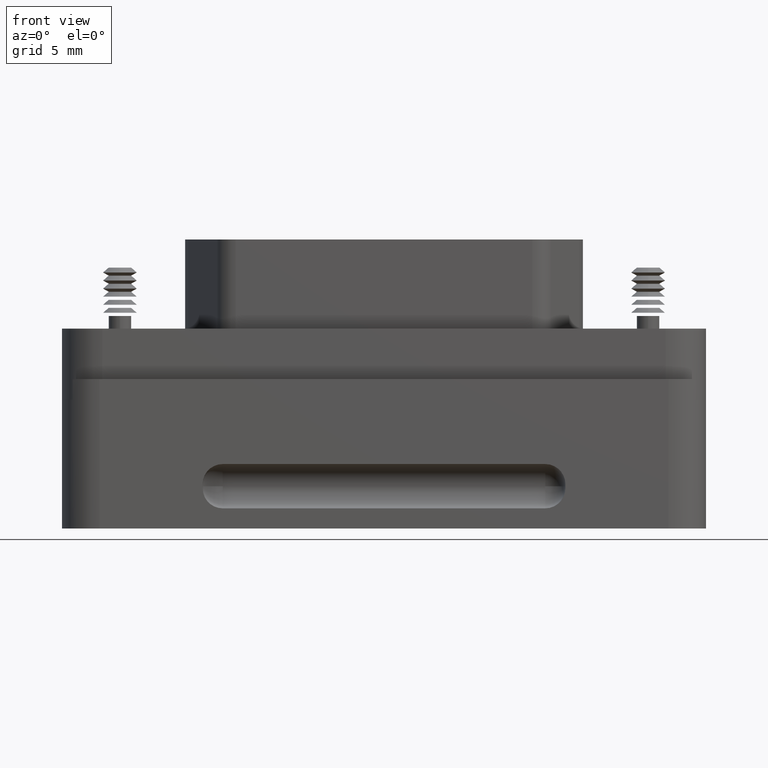
[diagram: clean part render]
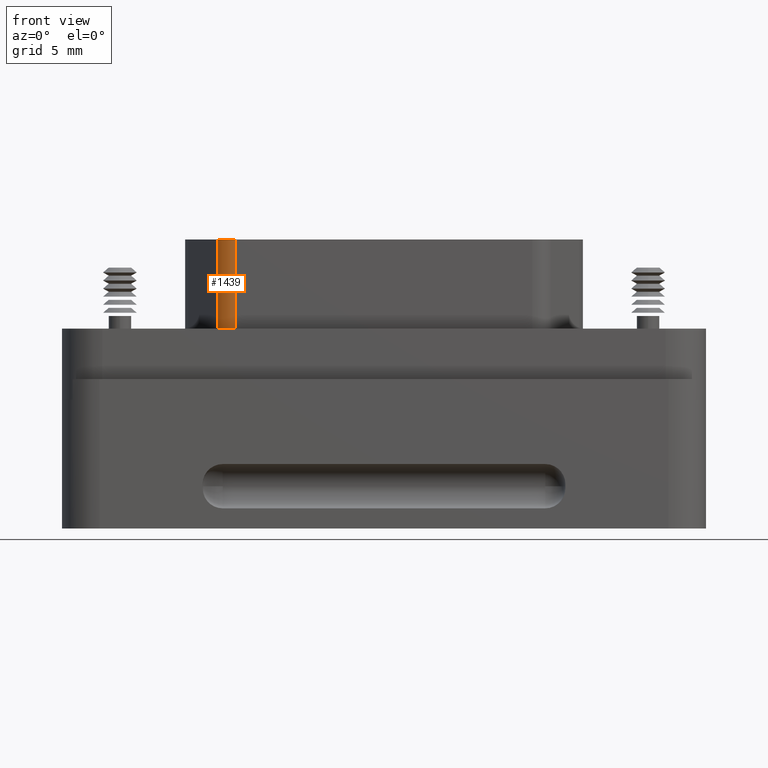
[diagram: same view with one face highlighted and labeled with its STEP entity id]
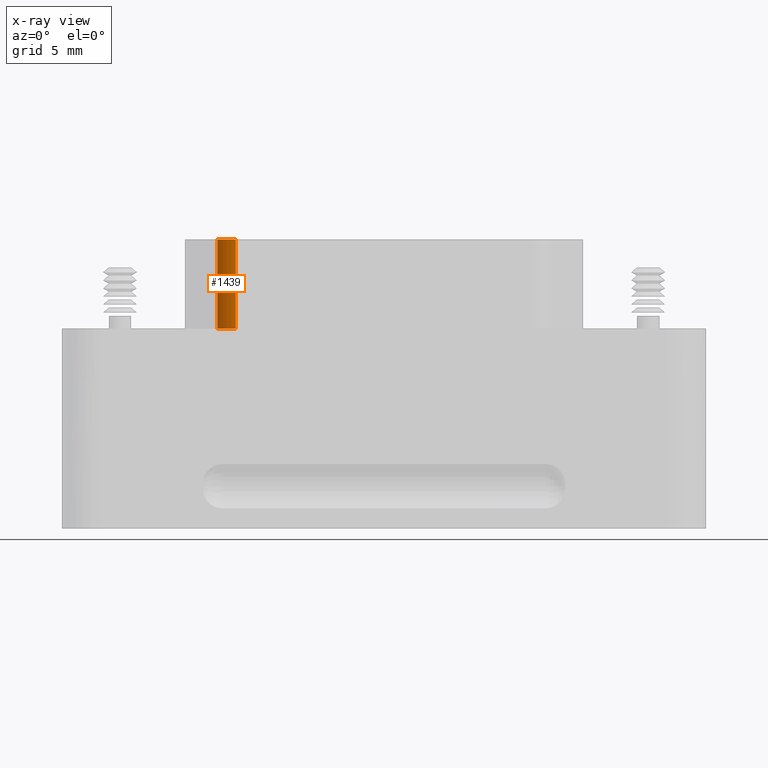
[diagram: x-ray of the same camera — body ghosted, the highlighted face saturated]
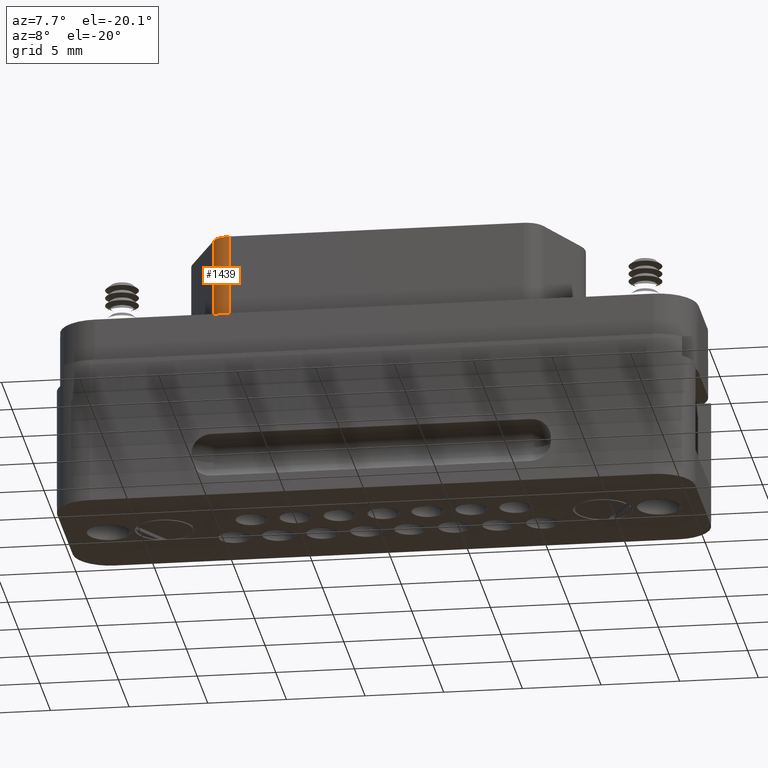
[diagram: same view with one face highlighted and labeled with its STEP entity id]
A machine part, front view. The second image highlights one B-rep face of the part: STEP entity #1439.
The next image is the same camera in x-ray: the body ghosted, the highlighted face saturated — about 0% of this face is hidden behind the body in this view.
A second angle (auxiliary view) of the same face is appended — the face is thin or edge-on in the first view.
In plain terms, the highlighted cylindrical surface (edge-blend (fillet) strip) has radius 1.27 mm, axis along (-0, -0, -1).
Its self-contained STEP definition (entity closure, byte-faithful):
#133 = ORIENTED_EDGE ( 'NONE', *, *, #2985, .T. ) ;
#134 = ORIENTED_EDGE ( 'NONE', *, *, #2984, .F. ) ;
#135 = ORIENTED_EDGE ( 'NONE', *, *, #2986, .F. ) ;
#136 = ORIENTED_EDGE ( 'NONE', *, *, #2987, .T. ) ;
#1409 = VECTOR ( 'NONE', #4827, 39.37007874015748100 ) ;
#1411 = LINE ( 'NONE', #4825, #1409 ) ;
#1413 = VECTOR ( 'NONE', #4828, 39.37007874015748100 ) ;
#1414 = CIRCLE ( 'NONE', #1780, 0.05000000000000001000 ) ;
#1417 = LINE ( 'NONE', #4830, #1413 ) ;
#1422 = CIRCLE ( 'NONE', #1781, 0.05000000000000001000 ) ;
#1439 = ADVANCED_FACE ( 'NONE', ( #1621 ), #1611, .T. ) ;
#1611 = CYLINDRICAL_SURFACE ( 'NONE', #3184, 0.05000000000000001000 ) ;
#1621 = FACE_OUTER_BOUND ( 'NONE', #2791, .T. ) ;
#1780 = AXIS2_PLACEMENT_3D ( 'NONE', #4824, #4822, #4820 ) ;
#1781 = AXIS2_PLACEMENT_3D ( 'NONE', #4819, #4818, #4816 ) ;
#2239 = VERTEX_POINT ( 'NONE', #4991 ) ;
#2371 = VERTEX_POINT ( 'NONE', #4558 ) ;
#2466 = VERTEX_POINT ( 'NONE', #5252 ) ;
#2526 = VERTEX_POINT ( 'NONE', #5188 ) ;
#2791 = EDGE_LOOP ( 'NONE', ( #133, #134, #135, #136 ) ) ;
#2984 = EDGE_CURVE ( 'NONE', #2526, #2239, #1417, .T. ) ;
#2985 = EDGE_CURVE ( 'NONE', #2466, #2239, #1414, .T. ) ;
#2986 = EDGE_CURVE ( 'NONE', #2371, #2526, #1422, .T. ) ;
#2987 = EDGE_CURVE ( 'NONE', #2371, #2466, #1411, .T. ) ;
#3184 = AXIS2_PLACEMENT_3D ( 'NONE', #5162, #5172, #5184 ) ;
#4558 = CARTESIAN_POINT ( 'NONE',  ( -0.2062710546779056900, 0.09217880018027424500, 0.5492459008453934900 ) ) ;
#4816 = DIRECTION ( 'NONE',  ( -1.000000000000000000, 0.0000000000000000000, 0.0000000000000000000 ) ) ;
#4818 = DIRECTION ( 'NONE',  ( 0.0000000000000000000, 0.0000000000000000000, 1.000000000000000000 ) ) ;
#4819 = CARTESIAN_POINT ( 'NONE',  ( -0.1608247446730734200, 0.1130266515550487200, 0.5492459008453934900 ) ) ;
#4820 = DIRECTION ( 'NONE',  ( -1.000000000000000000, 0.0000000000000000000, 0.0000000000000000000 ) ) ;
#4822 = DIRECTION ( 'NONE',  ( 0.0000000000000000000, 0.0000000000000000000, 1.000000000000000000 ) ) ;
#4824 = CARTESIAN_POINT ( 'NONE',  ( -0.1608247446730734200, 0.1130266515550487200, 0.3282459008453934600 ) ) ;
#4825 = CARTESIAN_POINT ( 'NONE',  ( -0.2062710546779056900, 0.09217880018027424500, 0.5492459008453934900 ) ) ;
#4827 = DIRECTION ( 'NONE',  ( -0.0000000000000000000, -0.0000000000000000000, -1.000000000000000000 ) ) ;
#4828 = DIRECTION ( 'NONE',  ( -0.0000000000000000000, -0.0000000000000000000, -1.000000000000000000 ) ) ;
#4830 = CARTESIAN_POINT ( 'NONE',  ( -0.1608247446730734200, 0.06302665155504870400, 0.5492459008453934900 ) ) ;
#4991 = CARTESIAN_POINT ( 'NONE',  ( -0.1608247446730734200, 0.06302665155504870400, 0.3282459008453934600 ) ) ;
#5162 = CARTESIAN_POINT ( 'NONE',  ( -0.1608247446730734200, 0.1130266515550487200, 0.5492459008453934900 ) ) ;
#5172 = DIRECTION ( 'NONE',  ( -0.0000000000000000000, -0.0000000000000000000, -1.000000000000000000 ) ) ;
#5184 = DIRECTION ( 'NONE',  ( -1.000000000000000000, 0.0000000000000000000, 0.0000000000000000000 ) ) ;
#5188 = CARTESIAN_POINT ( 'NONE',  ( -0.1608247446730734200, 0.06302665155504870400, 0.5492459008453934900 ) ) ;
#5252 = CARTESIAN_POINT ( 'NONE',  ( -0.2062710546779056900, 0.09217880018027424500, 0.3282459008453934600 ) ) ;